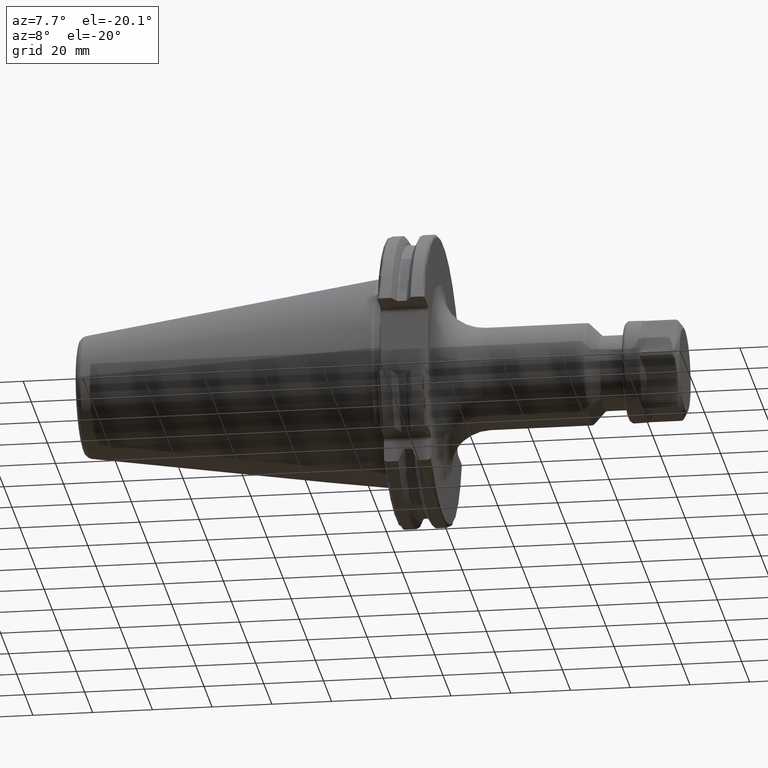
[diagram: clean part render]
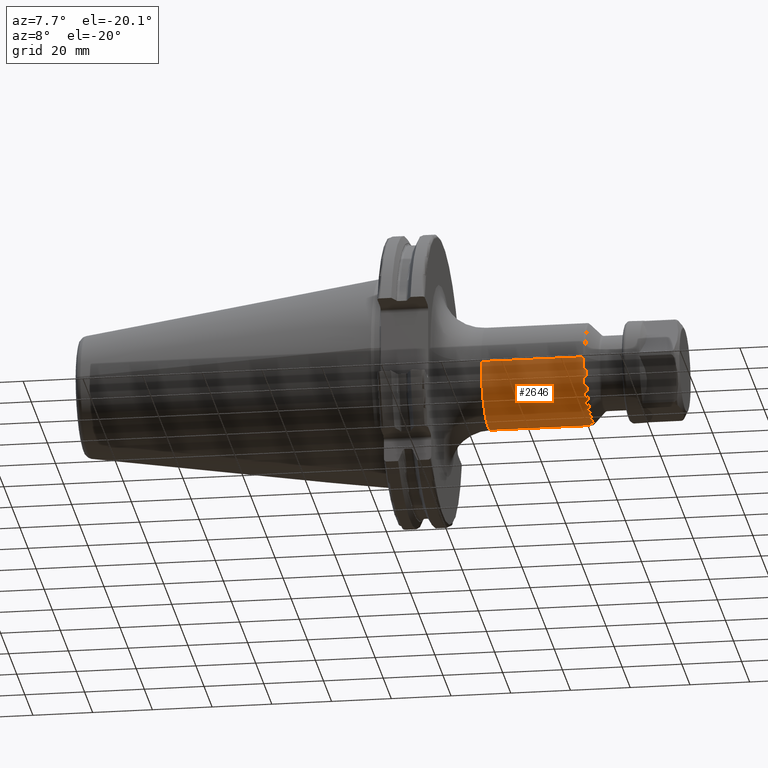
[diagram: same view with one face highlighted and labeled with its STEP entity id]
A machine part, auxiliary view. The second image highlights one B-rep face of the part: STEP entity #2646.
In plain terms, the highlighted cylindrical surface (partial cylindrical patch) has radius 17 mm, axis along (1, 0, 0).
Its self-contained STEP definition (entity closure, byte-faithful):
#982=CARTESIAN_POINT('',(6.808578643763E1,0.E0,0.E0));
#983=DIRECTION('',(-1.E0,0.E0,0.E0));
#984=DIRECTION('',(0.E0,1.E0,0.E0));
#985=AXIS2_PLACEMENT_3D('',#982,#983,#984);
#987=DIRECTION('',(-1.E0,0.E0,1.584573520058E-13));
#988=VECTOR('',#987,3.403578643763E1);
#989=CARTESIAN_POINT('',(6.808578643763E1,1.7E1,-3.636216212346E-12));
#990=LINE('',#989,#988);
#991=CARTESIAN_POINT('',(3.405E1,0.E0,0.E0));
#992=DIRECTION('',(1.E0,0.E0,0.E0));
#993=DIRECTION('',(0.E0,-1.E0,0.E0));
#994=AXIS2_PLACEMENT_3D('',#991,#992,#993);
#996=DIRECTION('',(-1.E0,0.E0,-1.585102664118E-13));
#997=VECTOR('',#996,3.403578643763E1);
#998=CARTESIAN_POINT('',(6.808578643763E1,-1.7E1,3.635685669568E-12));
#999=LINE('',#998,#997);
#1551=CARTESIAN_POINT('',(3.405E1,-1.7E1,0.E0));
#1552=CARTESIAN_POINT('',(3.405E1,1.7E1,0.E0));
#1553=VERTEX_POINT('',#1551);
#1554=VERTEX_POINT('',#1552);
#1563=CARTESIAN_POINT('',(6.808578643763E1,1.7E1,0.E0));
#1564=CARTESIAN_POINT('',(6.808578643763E1,-1.7E1,0.E0));
#1565=VERTEX_POINT('',#1563);
#1566=VERTEX_POINT('',#1564);
#2635=CARTESIAN_POINT('',(1.55775E1,0.E0,0.E0));
#2636=DIRECTION('',(1.E0,0.E0,0.E0));
#2637=DIRECTION('',(0.E0,-1.E0,0.E0));
#2638=AXIS2_PLACEMENT_3D('',#2635,#2636,#2637);
#2639=CYLINDRICAL_SURFACE('',#2638,1.7E1);
#2640=ORIENTED_EDGE('',*,*,#2626,.F.);
#2641=ORIENTED_EDGE('',*,*,#2601,.T.);
#2642=ORIENTED_EDGE('',*,*,#2571,.F.);
#2643=ORIENTED_EDGE('',*,*,#2598,.F.);
#2644=EDGE_LOOP('',(#2640,#2641,#2642,#2643));
#2645=FACE_OUTER_BOUND('',#2644,.F.);
#2646=ADVANCED_FACE('',(#2645),#2639,.T.);
#986=CIRCLE('',#985,1.7E1);
#995=CIRCLE('',#994,1.7E1);
#2571=EDGE_CURVE('',#1553,#1554,#995,.T.);
#2598=EDGE_CURVE('',#1566,#1553,#999,.T.);
#2601=EDGE_CURVE('',#1565,#1554,#990,.T.);
#2626=EDGE_CURVE('',#1565,#1566,#986,.T.);